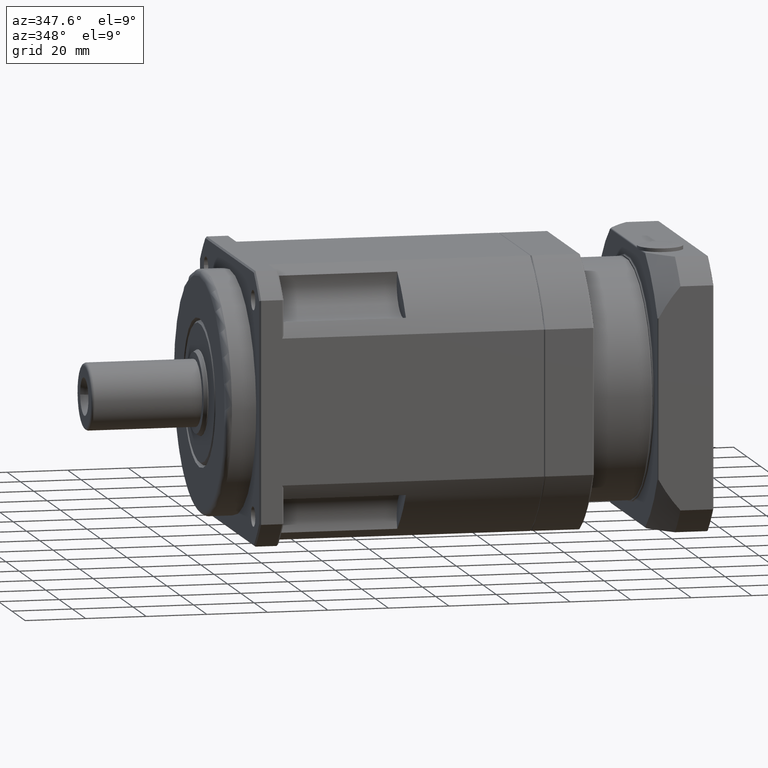
[diagram: clean part render]
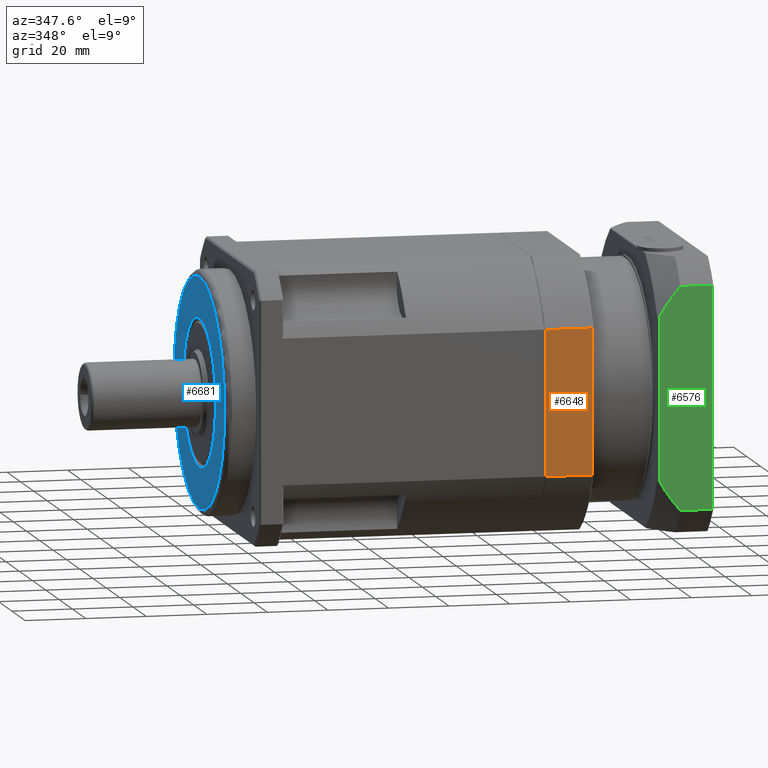
[diagram: same view with three faces highlighted in distinct colors, each labeled with its STEP entity id]
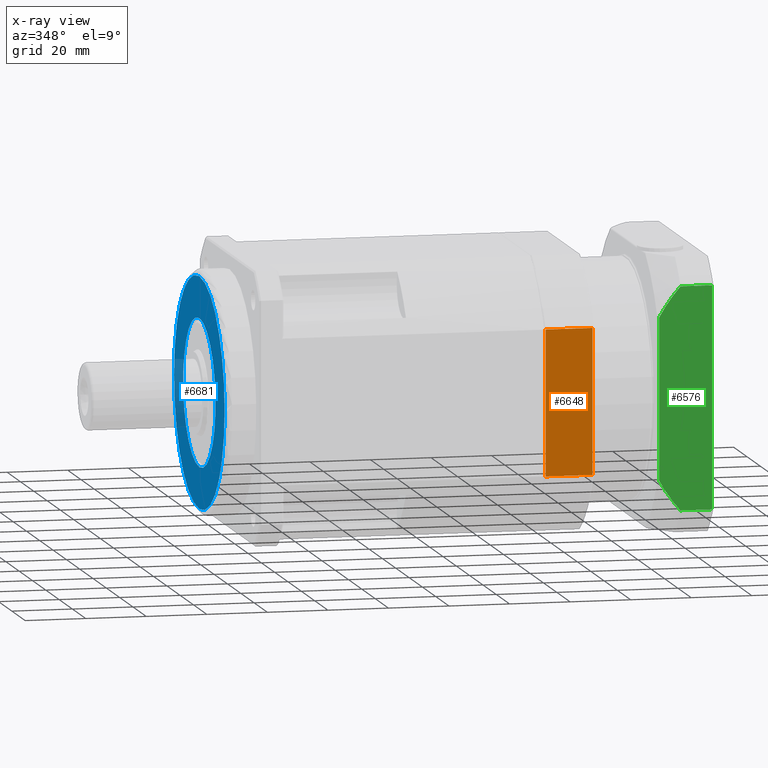
[diagram: x-ray of the same camera — body ghosted, the three highlighted faces saturated]
A machine part, auxiliary view with three faces highlighted in distinct colors.
The next image is the same camera in x-ray (body ghosted, the three faces saturated) — at least one of them is partly hidden behind the body in this view.
Their STEP definitions:

[orange] entity #6648 — the highlighted planar face has unit normal (0, -1, -0).
#489=LINE('',#11249,#804);
#499=LINE('',#11353,#814);
#504=LINE('',#11496,#819);
#508=LINE('',#11502,#823);
#804=VECTOR('',#8782,48.);
#814=VECTOR('',#8820,15.5);
#819=VECTOR('',#8855,48.);
#823=VECTOR('',#8863,15.5);
#1052=PLANE('',#7347);
#1620=FACE_OUTER_BOUND('',#2185,.T.);
#2185=EDGE_LOOP('',(#5325,#5326,#5327,#5328));
#3185=VERTEX_POINT('',#11202);
#3187=VERTEX_POINT('',#11234);
#3197=VERTEX_POINT('',#11352);
#3207=VERTEX_POINT('',#11477);
#3928=EDGE_CURVE('',#3187,#3185,#489,.T.);
#3947=EDGE_CURVE('',#3197,#3185,#499,.T.);
#3967=EDGE_CURVE('',#3197,#3207,#504,.T.);
#3971=EDGE_CURVE('',#3187,#3207,#508,.T.);
#5325=ORIENTED_EDGE('',*,*,#3928,.F.);
#5326=ORIENTED_EDGE('',*,*,#3971,.T.);
#5327=ORIENTED_EDGE('',*,*,#3967,.F.);
#5328=ORIENTED_EDGE('',*,*,#3947,.T.);
#6648=ADVANCED_FACE('',(#1620),#1052,.T.);
#7347=AXIS2_PLACEMENT_3D('',#11503,#8864,#8865);
#8782=DIRECTION('',(-4.77265694971786E-15,2.39738784379995E-15,-1.));
#8820=DIRECTION('',(1.,7.32403674775559E-22,-4.77265694971786E-15));
#8855=DIRECTION('',(4.77265694971786E-15,-2.39738784379995E-15,1.));
#8863=DIRECTION('',(-1.,-7.32403674775559E-22,4.77265694971786E-15));
#8864=DIRECTION('center_axis',(7.32403663333649E-22,-1.,-2.39738784379995E-15));
#8865=DIRECTION('ref_axis',(4.9737991503207E-15,-2.8421709430404E-15,1.));
#11202=CARTESIAN_POINT('',(49.9702896556817,-77.3933275789246,-13.1496122451694));
#11234=CARTESIAN_POINT('',(49.9702896556819,-77.3933275789247,34.8503877548307));
#11249=CARTESIAN_POINT('',(49.9702896556817,-77.3933275789246,-11.6496122451694));
#11352=CARTESIAN_POINT('',(34.4702896556817,-77.3933275789246,-13.1496122451693));
#11353=CARTESIAN_POINT('',(50.4702896556817,-77.3933275789246,-13.1496122451694));
#11477=CARTESIAN_POINT('',(34.4702896556819,-77.3933275789247,34.8503877548307));
#11496=CARTESIAN_POINT('',(34.4702896556817,-77.3933275789246,-11.6496122451693));
#11502=CARTESIAN_POINT('',(50.4702896556819,-77.3933275789247,34.8503877548307));
#11503=CARTESIAN_POINT('Origin',(50.4702896556816,-77.3933275789245,-34.1496122451694));

[blue] entity #6681 — the highlighted planar face has unit normal (1, 0, -0).
#1066=PLANE('',#7414);
#1287=FACE_BOUND('',#2245,.T.);
#1653=FACE_OUTER_BOUND('',#2244,.T.);
#2244=EDGE_LOOP('',(#5408));
#2245=EDGE_LOOP('',(#5409));
#2726=CIRCLE('',#7413,24.3660254037844);
#2727=CIRCLE('',#7415,38.);
#3246=VERTEX_POINT('',#11610);
#3247=VERTEX_POINT('',#11613);
#4009=EDGE_CURVE('',#3246,#3246,#2726,.T.);
#4010=EDGE_CURVE('',#3247,#3247,#2727,.T.);
#5408=ORIENTED_EDGE('',*,*,#4010,.F.);
#5409=ORIENTED_EDGE('',*,*,#4009,.F.);
#6681=ADVANCED_FACE('',(#1653,#1287),#1066,.F.);
#7413=AXIS2_PLACEMENT_3D('',#11611,#9000,#9001);
#7414=AXIS2_PLACEMENT_3D('',#11612,#9002,#9003);
#7415=AXIS2_PLACEMENT_3D('',#11614,#9004,#9005);
#9000=DIRECTION('center_axis',(-1.,-6.10622663543793E-16,4.82820056512866E-15));
#9001=DIRECTION('ref_axis',(-4.82820056512866E-15,1.19348975147199E-15,
-1.));
#9002=DIRECTION('center_axis',(1.,6.10622663543793E-16,-4.82820056512866E-15));
#9003=DIRECTION('ref_axis',(-4.2632564145606E-15,1.4210854715202E-15,-1.));
#9004=DIRECTION('center_axis',(1.,6.10622663543793E-16,-4.82820056512866E-15));
#9005=DIRECTION('ref_axis',(-4.82820056512866E-15,1.19348975147199E-15,
-1.));
#11610=CARTESIAN_POINT('',(-70.0297103443181,-32.3933275789247,35.2164131586158));
#11611=CARTESIAN_POINT('Origin',(-70.0297103443182,-32.3933275789247,10.8503877548313));
#11612=CARTESIAN_POINT('Origin',(-70.0297103443182,-32.3933275789247,10.8503877548313));
#11613=CARTESIAN_POINT('',(-70.029710344318,-32.3933275789248,48.8503877548313));
#11614=CARTESIAN_POINT('Origin',(-70.0297103443182,-32.3933275789247,10.8503877548313));

[green] entity #6576 — the highlighted planar face has unit normal (0, -1, -0).
#448=LINE('',#10730,#763);
#456=LINE('',#10747,#771);
#464=LINE('',#10876,#779);
#466=LINE('',#10896,#781);
#763=VECTOR('',#8459,10.4511904588865);
#771=VECTOR('',#8477,10.4511904588865);
#779=VECTOR('',#8511,73.184697854128);
#781=VECTOR('',#8519,53.3666562565054);
#1035=PLANE('',#7195);
#1548=FACE_OUTER_BOUND('',#2069,.T.);
#2069=EDGE_LOOP('',(#5009,#5010,#5011,#5012,#5013,#5014));
#2595=CIRCLE('',#7162,54.9181208709839);
#2601=CIRCLE('',#7170,54.9181208709839);
#3075=VERTEX_POINT('',#10605);
#3076=VERTEX_POINT('',#10607);
#3084=VERTEX_POINT('',#10680);
#3085=VERTEX_POINT('',#10681);
#3090=VERTEX_POINT('',#10729);
#3094=VERTEX_POINT('',#10745);
#3771=EDGE_CURVE('',#3076,#3075,#2595,.T.);
#3780=EDGE_CURVE('',#3084,#3085,#2601,.T.);
#3786=EDGE_CURVE('',#3090,#3084,#448,.T.);
#3796=EDGE_CURVE('',#3075,#3094,#456,.T.);
#3816=EDGE_CURVE('',#3090,#3094,#464,.T.);
#3820=EDGE_CURVE('',#3076,#3085,#466,.T.);
#5009=ORIENTED_EDGE('',*,*,#3780,.T.);
#5010=ORIENTED_EDGE('',*,*,#3820,.F.);
#5011=ORIENTED_EDGE('',*,*,#3771,.T.);
#5012=ORIENTED_EDGE('',*,*,#3796,.T.);
#5013=ORIENTED_EDGE('',*,*,#3816,.F.);
#5014=ORIENTED_EDGE('',*,*,#3786,.T.);
#6576=ADVANCED_FACE('',(#1548),#1035,.T.);
#7162=AXIS2_PLACEMENT_3D('',#10608,#8433,#8434);
#7170=AXIS2_PLACEMENT_3D('',#10682,#8449,#8450);
#7195=AXIS2_PLACEMENT_3D('',#10895,#8517,#8518);
#8433=DIRECTION('center_axis',(1.82765916343052E-16,-1.,-2.63292474242702E-15));
#8434=DIRECTION('ref_axis',(3.69160211864132E-15,-2.63292474242702E-15,
1.));
#8449=DIRECTION('center_axis',(1.82765916343052E-16,-1.,-2.63292474242702E-15));
#8450=DIRECTION('ref_axis',(3.69160211864132E-15,-2.63292474242702E-15,
1.));
#8459=DIRECTION('',(-1.,-1.82765916343062E-16,3.69160211864132E-15));
#8477=DIRECTION('',(1.,1.82765916343062E-16,-3.69160211864132E-15));
#8511=DIRECTION('',(-3.69160211864132E-15,2.63292474242702E-15,-1.));
#8517=DIRECTION('center_axis',(1.82765916343052E-16,-1.,-2.63292474242702E-15));
#8518=DIRECTION('ref_axis',(-4.2632564145606E-15,2.8421709430404E-15,-1.));
#8519=DIRECTION('',(3.69160211864132E-15,-2.63292474242702E-15,1.));
#10605=CARTESIAN_POINT('',(79.0190991967952,-77.3933275789246,-25.7419611722335));
#10607=CARTESIAN_POINT('',(71.9702896556817,-77.3933275789246,-15.8329403734221));
#10608=CARTESIAN_POINT('Origin',(119.970289655682,-77.3933275789246,10.8503877548304));
#10680=CARTESIAN_POINT('',(79.0190991967954,-77.3933275789248,47.4427366818945));
#10681=CARTESIAN_POINT('',(71.9702896556819,-77.3933275789247,37.5337158830832));
#10682=CARTESIAN_POINT('Origin',(119.970289655682,-77.3933275789246,10.8503877548304));
#10729=CARTESIAN_POINT('',(89.470289655682,-77.3933275789248,47.4427366818945));
#10730=CARTESIAN_POINT('',(89.970289655682,-77.3933275789248,47.4427366818945));
#10745=CARTESIAN_POINT('',(89.4702896556817,-77.3933275789246,-25.7419611722335));
#10747=CARTESIAN_POINT('',(89.9702896556817,-77.3933275789246,-25.7419611722335));
#10876=CARTESIAN_POINT('',(89.4702896556819,-77.3933275789247,33.3503877548305));
#10895=CARTESIAN_POINT('Origin',(71.470289655682,-77.3933275789248,55.8503877548306));
#10896=CARTESIAN_POINT('',(71.9702896556819,-77.3933275789247,33.3503877548306));